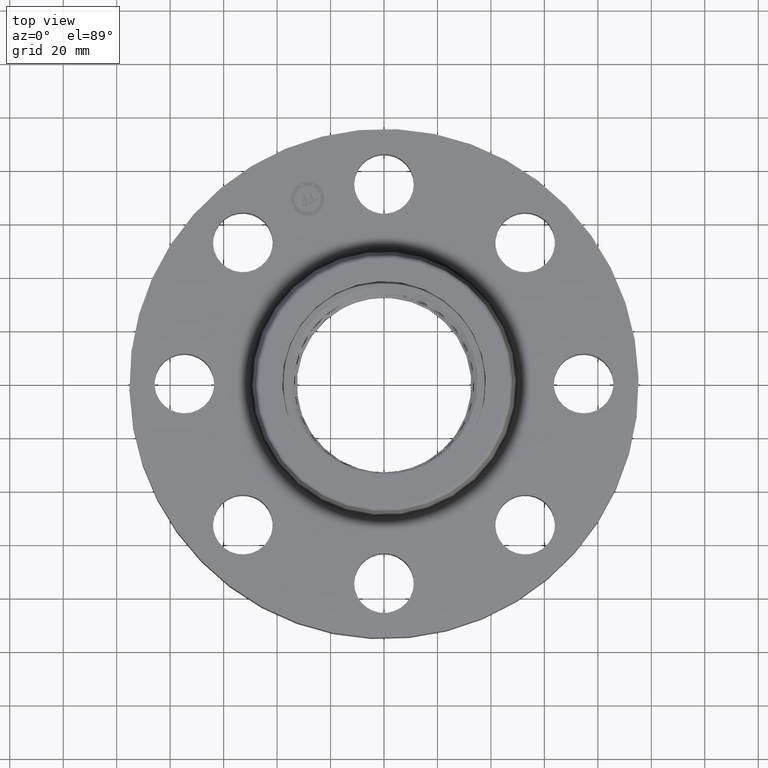
[diagram: clean part render]
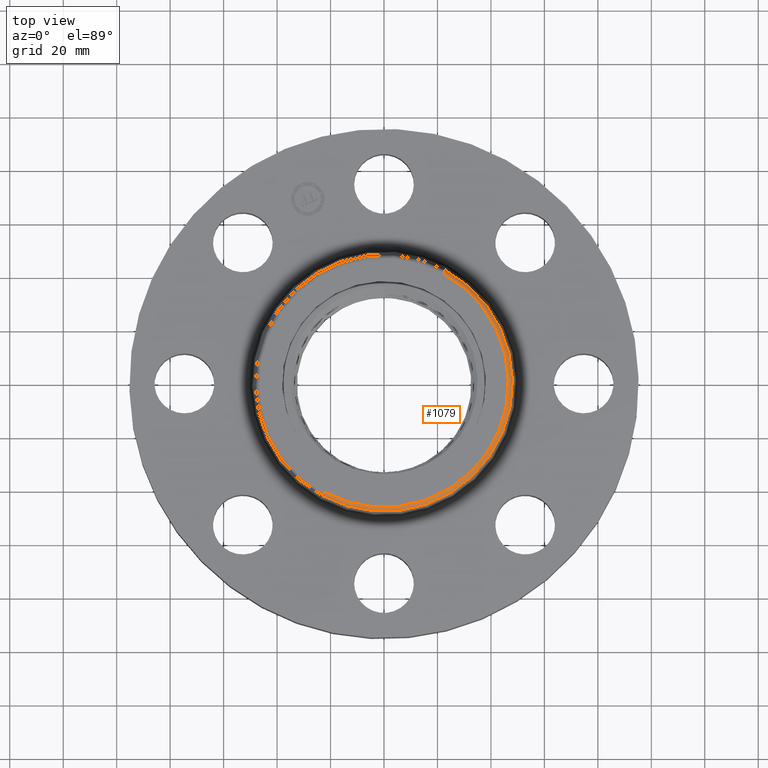
[diagram: same view with one face highlighted and labeled with its STEP entity id]
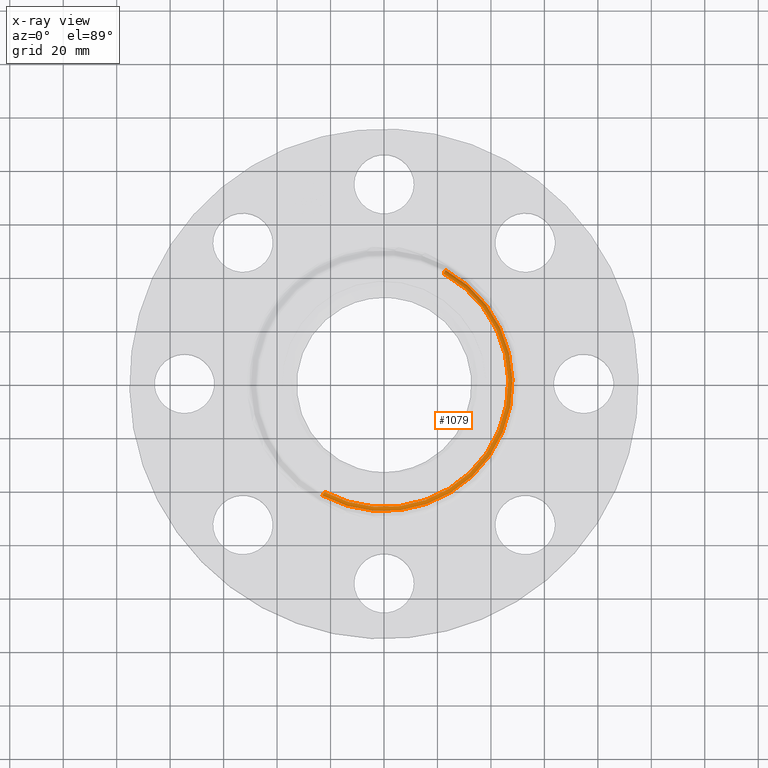
[diagram: x-ray of the same camera — body ghosted, the highlighted face saturated]
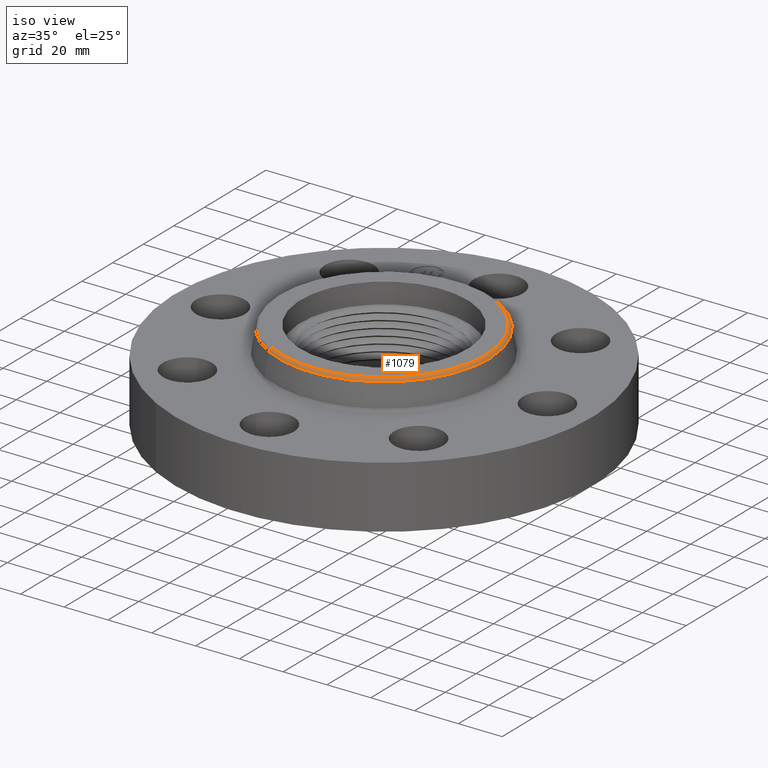
[diagram: same view with one face highlighted and labeled with its STEP entity id]
A machine part, top view. The second image highlights one B-rep face of the part: STEP entity #1079.
The next image is the same camera in x-ray: the body ghosted, the highlighted face saturated — about 0% of this face is hidden behind the body in this view.
A second angle (iso view) of the same face is appended — the face is thin or edge-on in the first view.
In plain terms, the highlighted toroidal blend (fillet) surface has major radius 46.5199 mm and minor (blend) radius 1.524 mm.
Its self-contained STEP definition (entity closure, byte-faithful):
#1026=AXIS2_PLACEMENT_3D('Torus Axis2P3D',#1023,#1024,#1025) ;
#1039=AXIS2_PLACEMENT_3D('Circle Axis2P3D',#1037,#1038,$) ;
#1053=AXIS2_PLACEMENT_3D('Circle Axis2P3D',#1051,#1052,$) ;
#1065=AXIS2_PLACEMENT_3D('Circle Axis2P3D',#1063,#1064,$) ;
#1070=AXIS2_PLACEMENT_3D('Circle Axis2P3D',#1068,#1069,$) ;
#1023=CARTESIAN_POINT('Axis2P3D Location',(0.,0.,1.56000000001)) ;
#1032=CARTESIAN_POINT('Vertex',(-0.906391853893,-1.65913915961,1.57041889067)) ;
#1034=CARTESIAN_POINT('Vertex',(0.906391853893,1.65913915961,1.57041889067)) ;
#1037=CARTESIAN_POINT('Axis2P3D Location',(-0.878063334648,-1.60728415296,1.56000000001)) ;
#1041=CARTESIAN_POINT('Vertex',(-0.878063334648,-1.60728415296,1.62000000001)) ;
#1048=CARTESIAN_POINT('Vertex',(0.878063334648,1.60728415296,1.62000000001)) ;
#1051=CARTESIAN_POINT('Axis2P3D Location',(0.878063334648,1.60728415296,1.56000000001)) ;
#1063=CARTESIAN_POINT('Axis2P3D Location',(0.,0.,1.57041889067)) ;
#1068=CARTESIAN_POINT('Axis2P3D Location',(0.,0.,1.62000000001)) ;
#1024=DIRECTION('Axis2P3D Direction',(0.,0.,-0.0393700787402)) ;
#1025=DIRECTION('Axis2P3D XDirection',(0.0188750212049,0.0345504945626,0.)) ;
#1038=DIRECTION('Axis2P3D Direction',(0.0345504945626,-0.0188750212049,0.)) ;
#1052=DIRECTION('Axis2P3D Direction',(-0.0345504945626,0.0188750212049,0.)) ;
#1064=DIRECTION('Axis2P3D Direction',(0.,0.,-0.0393700787402)) ;
#1069=DIRECTION('Axis2P3D Direction',(0.,0.,-0.0393700787402)) ;
#1074=ORIENTED_EDGE('',*,*,#1067,.F.) ;
#1075=ORIENTED_EDGE('',*,*,#1055,.T.) ;
#1076=ORIENTED_EDGE('',*,*,#1072,.T.) ;
#1077=ORIENTED_EDGE('',*,*,#1043,.F.) ;
#1079=ADVANCED_FACE('PartBody',(#1078),#1027,.T.) ;
#1040=CIRCLE('generated circle',#1039,0.0600000000002) ;
#1054=CIRCLE('generated circle',#1053,0.0600000000002) ;
#1066=CIRCLE('generated circle',#1065,1.89057899696) ;
#1071=CIRCLE('generated circle',#1070,1.83149053178) ;
#1027=TOROIDAL_SURFACE('homeo Torus',#1026,1.83149053178,0.0600000000002) ;
#1043=EDGE_CURVE('',#1033,#1042,#1040,.F.) ;
#1055=EDGE_CURVE('',#1035,#1049,#1054,.F.) ;
#1067=EDGE_CURVE('',#1035,#1033,#1066,.T.) ;
#1072=EDGE_CURVE('',#1049,#1042,#1071,.T.) ;
#1073=EDGE_LOOP('',(#1074,#1075,#1076,#1077)) ;
#1078=FACE_OUTER_BOUND('',#1073,.T.) ;
#1033=VERTEX_POINT('',#1032) ;
#1035=VERTEX_POINT('',#1034) ;
#1042=VERTEX_POINT('',#1041) ;
#1049=VERTEX_POINT('',#1048) ;